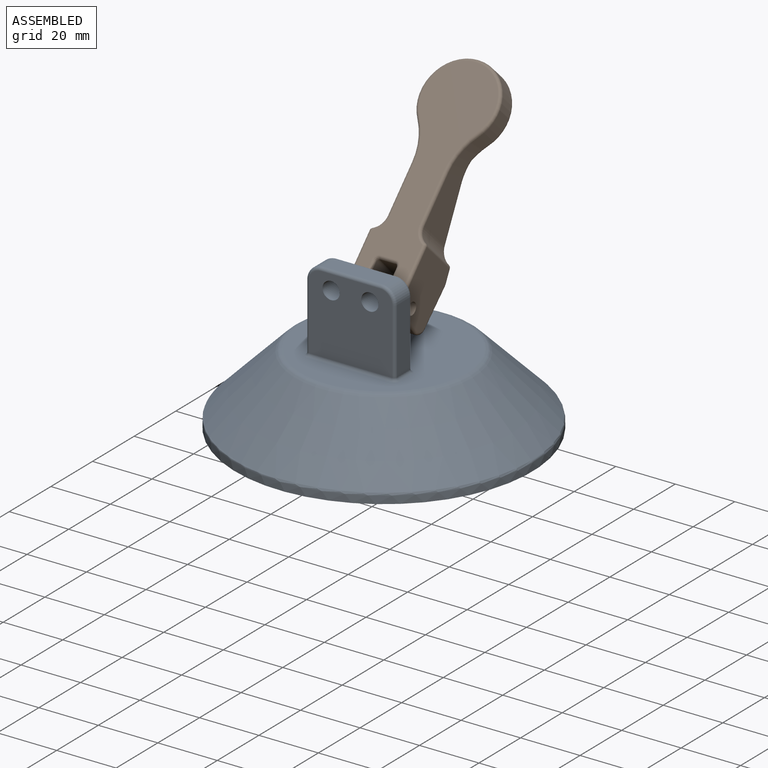
[diagram: assembled view]
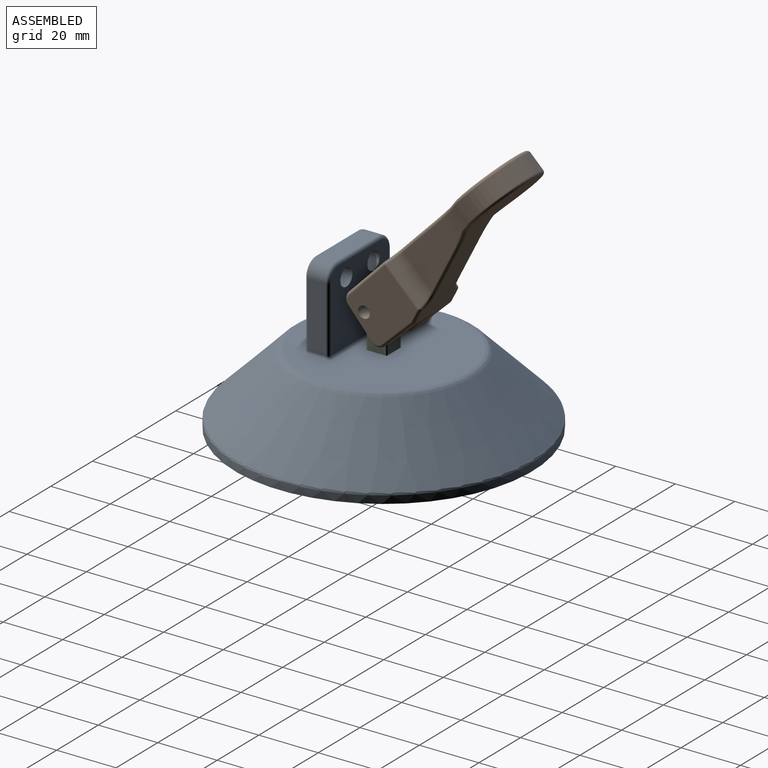
[diagram: assembled view, second angle]
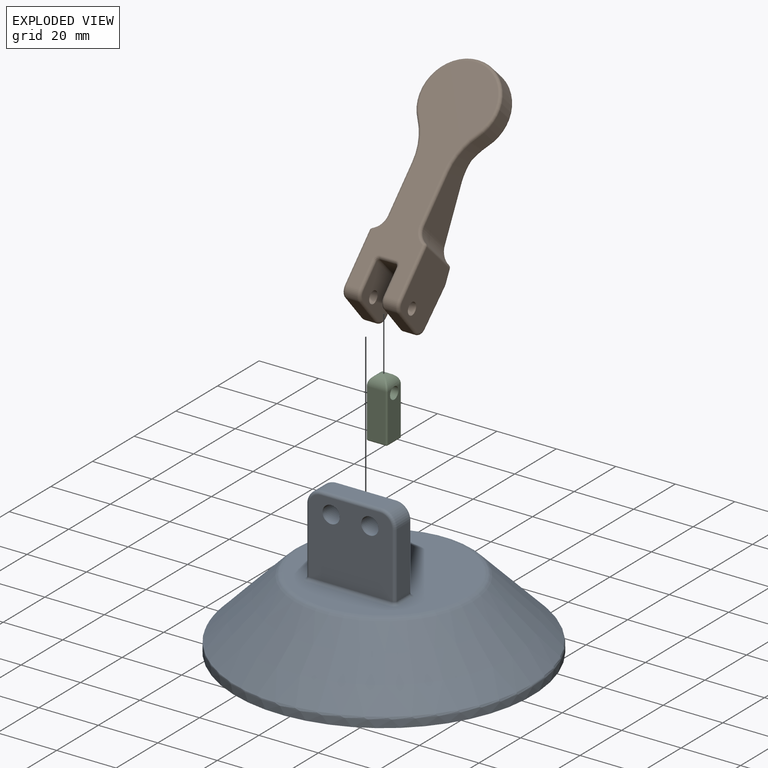
[diagram: exploded view]
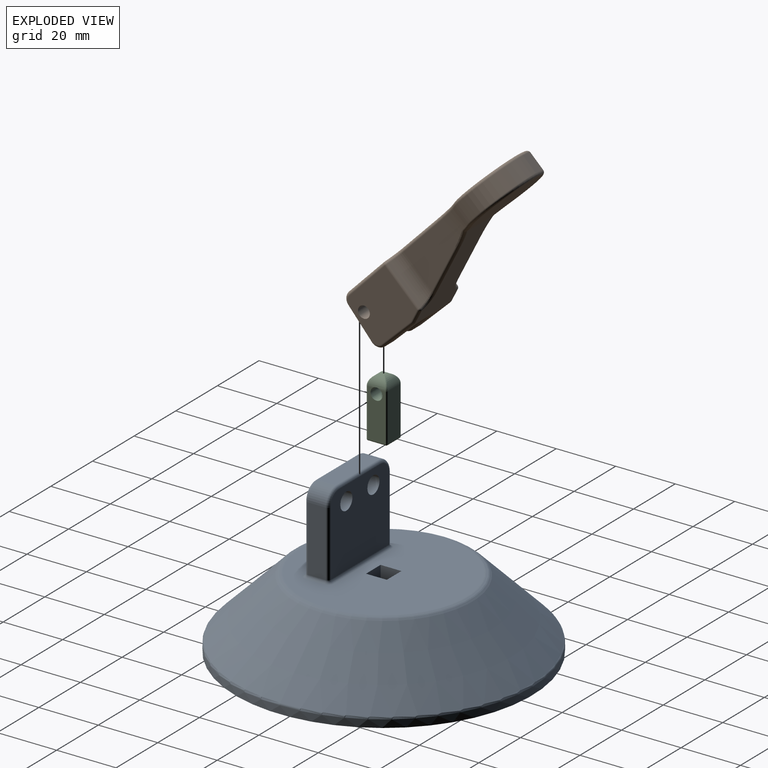
[diagram: exploded view, second angle]
ASSEMBLY  parts=3 mates=2
PART A: 38 faces, bbox 108.2x52.4x108.2 mm
  f0: plane 55.51x55.51mm, normal (0,1,0), area 2054.9mm2, adj f13,f18,f21,f22,f25,f26,f28,f29
  f1: plane 100x100mm, normal (0,-1,0), area 7854mm2, adj f3
  f2: cone r=29mm half-angle=45deg, axis (0,-1,0), area 7011.1mm2, adj f13,f14
  f3: cylinder r=50mm len=100mm, axis (0,-1,0), area 812.3mm2, adj f1,f14
  f4: plane 28x26mm, normal (-1,0,0), area 668.3mm2, adj f9,f10,f20,f24,f27,f28,f30,f32
  f5: plane 22x6mm, normal (0,0,1), area 132mm2, adj f12,f16,f20,f21
  f6: plane 28x26mm, normal (1,0,0), area 668.3mm2, adj f9,f10,f15,f16,f17,f19,f22,f23
  f7: plane 22x6mm, normal (0,0,-1), area 132mm2, adj f11,f23,f29,f32
  f8: plane 20x6mm, normal (0,1,0), area 120mm2, adj f11,f12,f17,f27
  f9: cylinder r=2.9mm len=8mm, axis (1,0,0), area 145.8mm2, adj f4,f6
  f10: cylinder r=2.9mm len=8mm, axis (1,0,0), area 145.8mm2, adj f4,f6
  f11: cylinder r=5mm len=6mm, axis (1,0,0), area 47.1mm2, adj f7,f8,f19,f30
  f12: cylinder r=5mm len=6mm, axis (-1,0,0), area 47.1mm2, adj f5,f8,f15,f24
  f13: torus R=27.76mm, axis (0,-1,0), area 427.5mm2, adj f0,f2
  f14: torus R=49mm, axis (0,1,0), area 246.2mm2, adj f2,f3
  f15: torus R=4mm, axis (-1,0,0), area 11.4mm2, adj f6,f12,f16,f17
  f16: cylinder r=1mm len=22mm, axis (0,-1,0), area 34.6mm2, adj f5,f6,f15,f18
  f17: cylinder r=1mm len=20mm, axis (0,0,1), area 31.4mm2, adj f6,f8,f15,f19
  f18: torus R=2mm, axis (0,-1,0), area 3.4mm2, adj f0,f16,f21,f22
  f19: torus R=4mm, axis (-1,0,0), area 11.4mm2, adj f6,f11,f17,f23
  f20: cylinder r=1mm len=22mm, axis (0,-1,0), area 34.6mm2, adj f4,f5,f24,f25
  f21: cylinder r=1mm len=6mm, axis (-1,0,0), area 9.4mm2, adj f0,f5,f18,f25
  f22: cylinder r=1mm len=28mm, axis (0,0,1), area 44mm2, adj f0,f6,f18,f26
  f23: cylinder r=1mm len=22mm, axis (0,-1,0), area 34.6mm2, adj f6,f7,f19,f26
  f24: torus R=4mm, axis (1,0,0), area 11.4mm2, adj f4,f12,f20,f27
  f25: torus R=2mm, axis (0,-1,0), area 3.4mm2, adj f0,f20,f21,f28
  f26: torus R=2mm, axis (0,-1,0), area 3.4mm2, adj f0,f22,f23,f29
  f27: cylinder r=1mm len=20mm, axis (0,0,-1), area 31.4mm2, adj f4,f8,f24,f30
  f28: cylinder r=1mm len=28mm, axis (0,0,-1), area 44mm2, adj f0,f4,f25,f31
  f29: cylinder r=1mm len=6mm, axis (1,0,0), area 9.4mm2, adj f0,f7,f26,f31
  f30: torus R=4mm, axis (1,0,0), area 11.4mm2, adj f4,f11,f27,f32
  f31: torus R=2mm, axis (0,-1,0), area 3.4mm2, adj f0,f28,f29,f32
  f32: cylinder r=1mm len=22mm, axis (0,-1,0), area 34.6mm2, adj f4,f7,f30,f31
  f33: plane 20x7mm, normal (1,0,0), area 140mm2, adj f0,f34,f36,f37
  f34: plane 20x7mm, normal (0,0,1), area 140mm2, adj f0,f33,f35,f37
  f35: plane 20x7mm, normal (-1,0,0), area 140mm2, adj f0,f34,f36,f37
  f36: plane 20x7mm, normal (0,0,-1), area 140mm2, adj f0,f33,f35,f37
  f37: plane 7x7mm, normal (0,1,0), area 49mm2, adj f33,f34,f35,f36
PART B: 82 faces, bbox 77.3x20.9x28.1 mm
  f0: plane 12.1x4mm, normal (1,0.05,0), area 48.5mm2, adj f2,f3,f29,f68
  f1: cylinder r=2mm len=6mm, axis (0,0,1), area 75.4mm2, adj f11,f23
  f2: cylinder r=3mm len=4mm, axis (0,0,-1), area 19.5mm2, adj f0,f8,f35,f73
  f3: cylinder r=3mm len=4mm, axis (0,0,-1), area 17.8mm2, adj f0,f5,f34,f65
  f4: plane 12.1x4mm, normal (1,0.05,0), area 48.5mm2, adj f20,f21,f26,f67
  f5: plane 71.21x24mm, normal (0.03,1,0), area 980.5mm2, adj f3,f21,f25,f27,f28,f32,f33,f37
  f6: plane 24.83x24mm, normal (-0.03,-1,0), area 476mm2, adj f58,f61,f62,f63
  f7: plane 32.56x17mm, normal (-0.33,-0.94,0), area 392.4mm2, adj f19,f46,f49,f52,f53,f54,f55,f56
  f8: plane 17x13.32mm, normal (0,-1,0), area 125.5mm2, adj f2,f19,f20,f36,f41,f76,f77,f79
  f9: plane 16.76x14mm, normal (0,0,1), area 178.6mm2, adj f16,f18,f33,f55
  f10: plane 16.76x14mm, normal (0,0,-1), area 178.6mm2, adj f15,f17,f32,f54
  f11: plane 20.08x16.69mm, normal (0,0,1), area 301.7mm2, adj f1,f29,f34,f35,f40,f41,f45,f48
  f12: plane 20.08x16.69mm, normal (0,0,-1), area 301.7mm2, adj f14,f26,f30,f31,f36,f37,f42,f46
  f13: cylinder r=13mm len=26mm, axis (0.03,1,0), area 348.5mm2, adj f15,f16,f25,f63
  f14: cylinder r=2mm len=6mm, axis (0,0,1), area 75.4mm2, adj f12,f24
  f15: cylinder r=20mm len=12.6mm, axis (0.03,1,0), area 87.5mm2, adj f10,f13,f27,f56,f59,f61
  f16: cylinder r=20mm len=12.6mm, axis (0.03,1,0), area 87.5mm2, adj f9,f13,f28,f57,f60,f62
  f17: cylinder r=5mm len=15.29mm, axis (-0.03,-1,0), area 82.1mm2, adj f10,f38,f47,f52
  f18: cylinder r=5mm len=15.29mm, axis (0.03,1,0), area 82.1mm2, adj f9,f39,f48,f53
  f19: cylinder r=3mm len=17mm, axis (0,0,-1), area 17.3mm2, adj f7,f8,f42,f45
  f20: cylinder r=3mm len=4mm, axis (0,0,-1), area 19.5mm2, adj f4,f8,f30,f72
  f21: cylinder r=3mm len=4mm, axis (0,0,-1), area 17.8mm2, adj f4,f5,f31,f64
  f22: plane 16.48x5mm, normal (1,0,0), area 82.4mm2, adj f70,f75,f78,f81
  f23: plane 16.41x11.42mm, normal (0,0,-1), area 165.8mm2, adj f1,f65,f68,f69,f73,f77,f78
  f24: plane 16.41x11.42mm, normal (0,0,1), area 165.8mm2, adj f14,f64,f66,f67,f72,f75,f76
  f25: torus R=12mm, axis (-0.03,-1,0), area 88.7mm2, adj f5,f13,f27,f28
  f26: cylinder r=1mm len=12.15mm, axis (-0.05,1,0), area 19mm2, adj f4,f12,f30,f31
  f27: torus R=21mm, axis (-0.03,-1,0), area 21.2mm2, adj f5,f15,f25,f32
  f28: torus R=21mm, axis (-0.03,-1,0), area 21.2mm2, adj f5,f16,f25,f33
  f29: cylinder r=1mm len=12.15mm, axis (0.05,-1,0), area 19mm2, adj f0,f11,f34,f35
  f30: torus R=2mm, axis (0,0,-1), area 6.7mm2, adj f12,f20,f26,f36
  f31: torus R=2mm, axis (0,0,-1), area 6.1mm2, adj f12,f21,f26,f37
  f32: cylinder r=1mm len=16.5mm, axis (1,-0.03,0), area 25.9mm2, adj f5,f10,f27,f38
  f33: cylinder r=1mm len=16.5mm, axis (-1,0.03,0), area 25.9mm2, adj f5,f9,f28,f39
  f34: torus R=2mm, axis (0,0,1), area 6.1mm2, adj f3,f11,f29,f40
  f35: torus R=2mm, axis (0,0,1), area 6.7mm2, adj f2,f11,f29,f41
  f36: cylinder r=1mm len=13.32mm, axis (1,0,0), area 20.9mm2, adj f8,f12,f30,f42
  f37: cylinder r=1mm len=17.02mm, axis (1,-0.03,0), area 26.7mm2, adj f5,f12,f31,f43
  f38: torus R=6mm, axis (-0.03,-1,0), area 9.6mm2, adj f5,f17,f32,f43
  f39: torus R=6mm, axis (-0.03,-1,0), area 9.6mm2, adj f5,f18,f33,f44
  f40: cylinder r=1mm len=17.02mm, axis (-1,0.03,0), area 26.7mm2, adj f5,f11,f34,f44
  f41: cylinder r=1mm len=13.32mm, axis (-1,0,0), area 20.9mm2, adj f8,f11,f35,f45
  f42: torus R=2mm, axis (0,0,-1), area 1.4mm2, adj f12,f19,f36,f46
  f43: sphere r=1mm, area 1.1mm2, adj f37,f38,f47
  f44: sphere r=1mm, area 1.1mm2, adj f39,f40,f48
  f45: torus R=2mm, axis (0,0,1), area 1.4mm2, adj f11,f19,f41,f49
  f46: cylinder r=1mm len=4.42mm, axis (0.94,-0.33,0), area 6.8mm2, adj f7,f12,f42,f50
  f47: cylinder r=1mm len=15.17mm, axis (-0.03,-1,0), area 17.3mm2, adj f12,f17,f43,f50
  f48: cylinder r=1mm len=15.17mm, axis (0.03,1,0), area 17.3mm2, adj f11,f18,f44,f51
  f49: cylinder r=1mm len=4.42mm, axis (-0.94,0.33,0), area 6.8mm2, adj f7,f11,f45,f51
  f50: sphere r=1mm, area 1mm2, adj f46,f47,f52
  f51: sphere r=1mm, area 1mm2, adj f48,f49,f53
  f52: bspline ~6.61x4.29mm, area 9.1mm2, adj f7,f17,f50,f54
  f53: bspline ~5.39x3.92mm, area 9.1mm2, adj f7,f18,f51,f55
  f54: cylinder r=1mm len=16.62mm, axis (0.94,-0.33,0), area 27.1mm2, adj f7,f10,f52,f56
  f55: cylinder r=1mm len=16.62mm, axis (-0.94,0.33,0), area 27.1mm2, adj f7,f9,f53,f57
  f56: bspline ~7.13x3.33mm, area 11.5mm2, adj f7,f15,f54,f59
  f57: bspline ~7.13x3.33mm, area 11.5mm2, adj f7,f16,f55,f60
  f58: cylinder r=1mm len=12.75mm, axis (0,0,1), area 3.8mm2, adj f6,f7,f59,f60
  f59: bspline ~1.42x1.34mm, area 0.7mm2, adj f15,f56,f58,f61
  f60: bspline ~1.25x1.19mm, area 0.7mm2, adj f16,f57,f58,f62
  f61: torus R=21mm, axis (0.03,1,0), area 9.6mm2, adj f6,f15,f59,f63
  f62: torus R=21mm, axis (0.03,1,0), area 9.6mm2, adj f6,f16,f60,f63
  f63: torus R=12mm, axis (0.03,1,0), area 88.7mm2, adj f6,f13,f61,f62
  f64: torus R=2mm, axis (0,0,-1), area 6.1mm2, adj f21,f24,f66,f67
  f65: torus R=2mm, axis (0,0,1), area 6.1mm2, adj f3,f23,f68,f69
  f66: cylinder r=1mm len=8.89mm, axis (1,-0.03,0), area 13.9mm2, adj f5,f24,f64,f71
  f67: cylinder r=1mm len=12.15mm, axis (0.05,-1,0), area 19mm2, adj f4,f24,f64,f72
  f68: cylinder r=1mm len=12.15mm, axis (-0.05,1,0), area 19mm2, adj f0,f23,f65,f73
  f69: cylinder r=1mm len=8.89mm, axis (-1,0.03,0), area 13.9mm2, adj f5,f23,f65,f74
  f70: cylinder r=1mm len=5mm, axis (0,0,-1), area 7.7mm2, adj f5,f22,f71,f74
  f71: bspline ~2.35x2.35mm, area 3.3mm2, adj f5,f66,f70,f75
  f72: torus R=2mm, axis (0,0,-1), area 6.7mm2, adj f20,f24,f67,f76
  f73: torus R=2mm, axis (0,0,1), area 6.7mm2, adj f2,f23,f68,f77
  f74: bspline ~2.35x2.09mm, area 3.3mm2, adj f5,f69,f70,f78
  f75: cylinder r=1mm len=16.48mm, axis (0,-1,0), area 25.8mm2, adj f22,f24,f71,f79
  f76: cylinder r=1mm len=9.42mm, axis (-1,0,0), area 14.8mm2, adj f8,f24,f72,f79
  f77: cylinder r=1mm len=9.42mm, axis (1,0,0), area 14.8mm2, adj f8,f23,f73,f80
  f78: cylinder r=1mm len=16.48mm, axis (0,-1,0), area 25.8mm2, adj f22,f23,f74,f80
  f79: torus R=2mm, axis (0,1,0), area 3.4mm2, adj f8,f75,f76,f81
  f80: torus R=2mm, axis (0,1,0), area 3.4mm2, adj f8,f77,f78,f81
  f81: cylinder r=1mm len=5mm, axis (0,0,1), area 7.9mm2, adj f8,f22,f79,f80
PART C: 26 faces, bbox 7x20x7 mm
  f0: plane 16x6mm, normal (0,0,1), area 84.3mm2, adj f5,f7,f18,f22,f24
  f1: plane 16x6mm, normal (0,0,-1), area 84.3mm2, adj f5,f8,f11,f15,f16
  f2: plane 16x6mm, normal (-1,0,0), area 96mm2, adj f6,f11,f17,f18
  f3: plane 6x6mm, normal (0,-1,0), area 36mm2, adj f16,f17,f21,f22
  f4: plane 16x6mm, normal (1,0,0), area 96mm2, adj f9,f15,f21,f24
  f5: cylinder r=2mm len=7mm, axis (0,0,-1), area 87.9mm2, adj f0,f1,f7,f8
  f6: cylinder r=3.5mm len=6mm, axis (0,0,-1), area 21mm2, adj f2,f10,f14
  f7: cylinder r=3.5mm len=6mm, axis (1,0,0), area 20.1mm2, adj f0,f5,f14,f25
  f8: cylinder r=3.5mm len=6mm, axis (-1,0,0), area 20.1mm2, adj f1,f5,f10,f12
  f9: cylinder r=3.5mm len=6mm, axis (0,0,-1), area 21mm2, adj f4,f12,f25
  f10: bspline ~4.02x3.5mm, area 3mm2, adj f6,f8,f11
  f11: cylinder r=0.5mm len=16mm, axis (0,-1,0), area 12.6mm2, adj f1,f2,f10,f13
  f12: bspline ~4.02x3.5mm, area 3mm2, adj f8,f9,f15
  f13: sphere r=0.5mm, area 0.4mm2, adj f11,f16,f17
  f14: bspline ~3.63x3.5mm, area 3mm2, adj f6,f7,f18
  f15: cylinder r=0.5mm len=16mm, axis (0,1,0), area 12.6mm2, adj f1,f4,f12,f19
  f16: cylinder r=0.5mm len=6mm, axis (1,0,0), area 4.7mm2, adj f1,f3,f13,f19
  f17: cylinder r=0.5mm len=6mm, axis (0,0,-1), area 4.7mm2, adj f2,f3,f13,f20
  f18: cylinder r=0.5mm len=16mm, axis (0,1,0), area 12.6mm2, adj f0,f2,f14,f20
  f19: sphere r=0.5mm, area 0.4mm2, adj f15,f16,f21
  f20: sphere r=0.5mm, area 0.4mm2, adj f17,f18,f22
  f21: cylinder r=0.5mm len=6mm, axis (0,0,-1), area 4.7mm2, adj f3,f4,f19,f23
  f22: cylinder r=0.5mm len=6mm, axis (-1,0,0), area 4.7mm2, adj f0,f3,f20,f23
  f23: sphere r=0.5mm, area 0.4mm2, adj f21,f22,f24
  f24: cylinder r=0.5mm len=16mm, axis (0,-1,0), area 12.6mm2, adj f0,f4,f23,f25
  f25: bspline ~3.63x3.5mm, area 3mm2, adj f7,f9,f24
PLACE A rot(axis=(0.58,0.58,0.58),120deg) t=(0,0,0)mm
PLACE B rot(axis=(0.68,-0.29,-0.68),147.7deg) t=(0,0,38.64)mm
PLACE C rot(axis=(0.58,0.58,0.58),120deg) t=(0,0,38.64)mm
MATE revolute C.f5 <-> B.f1  axis (-1,0,0) through (0,0,38.64)mm
MATE slider A.f2 <-> C.f3  axis (0,0,1) through (0,0,24)mm
